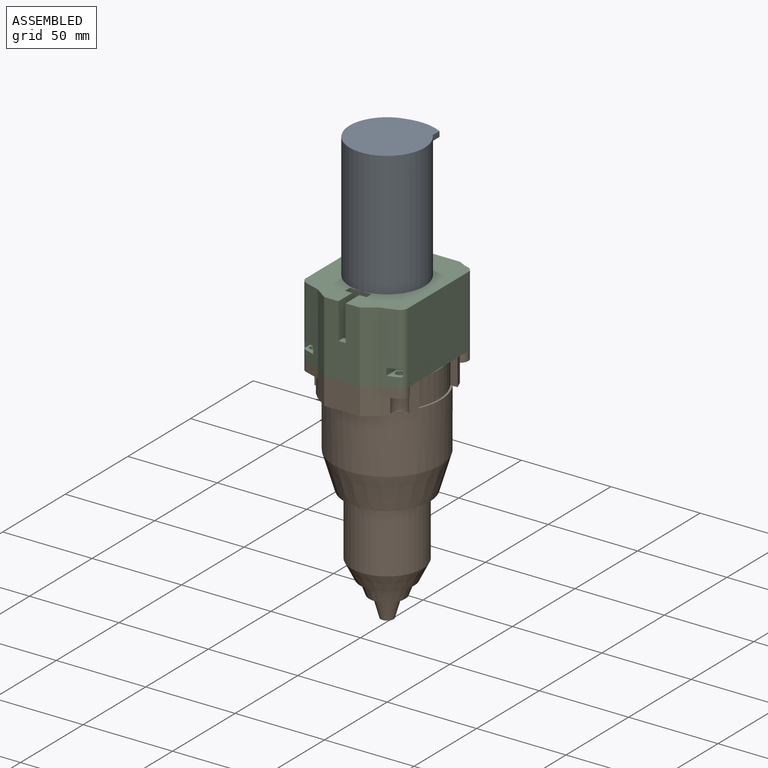
[diagram: assembled view]
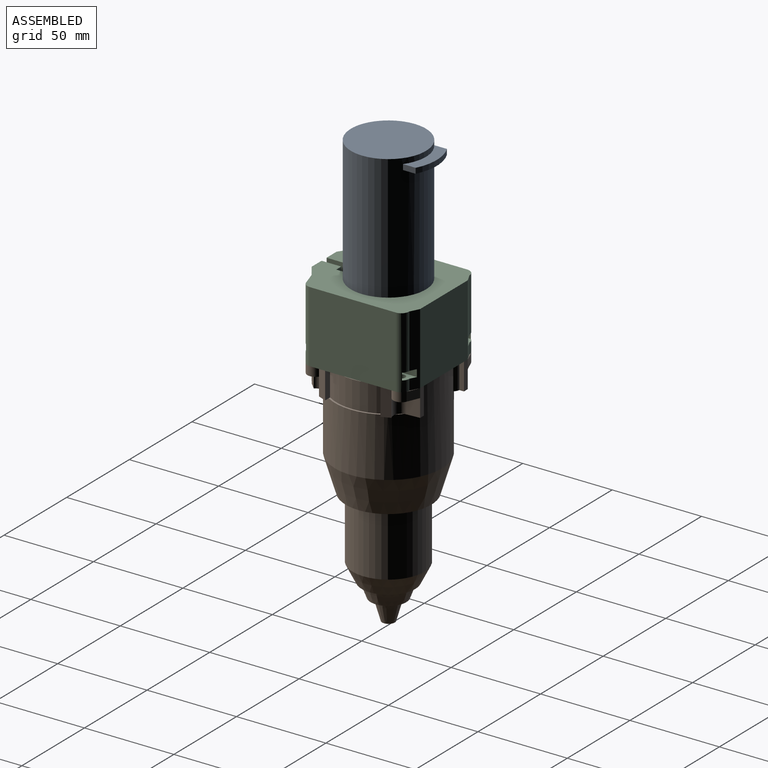
[diagram: assembled view, second angle]
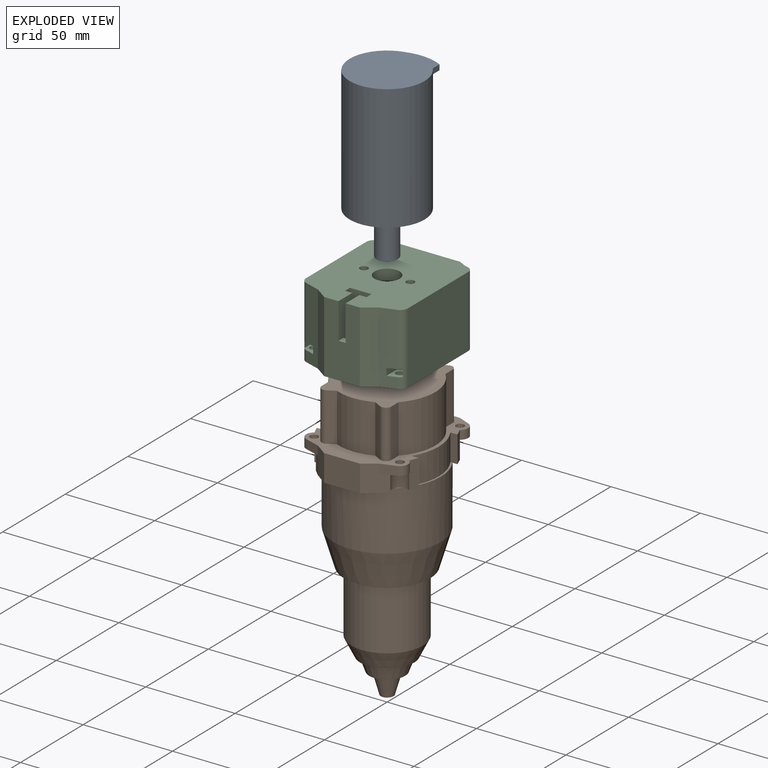
[diagram: exploded view]
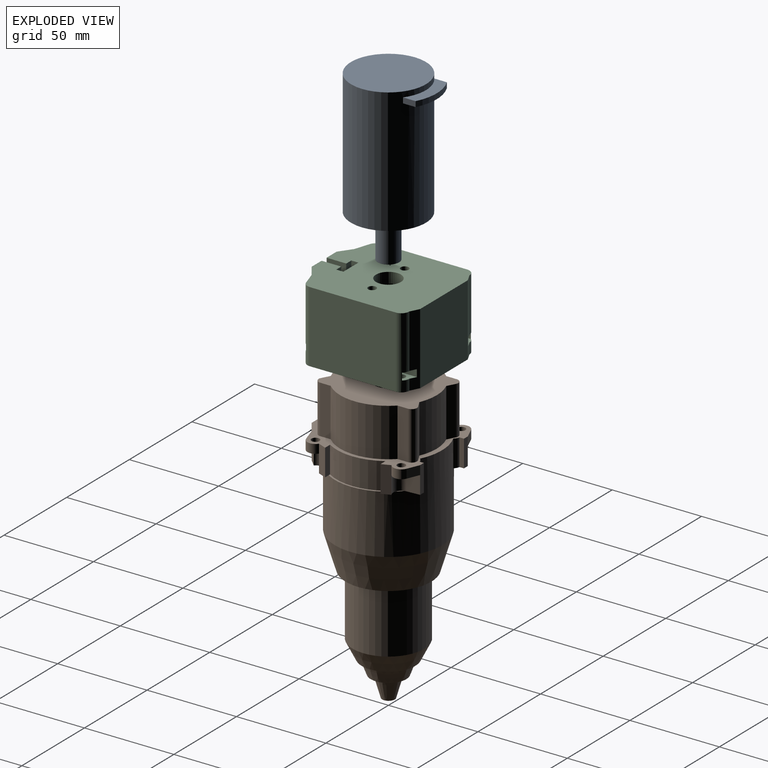
[diagram: exploded view, second angle]
ASSEMBLY  parts=3 mates=2
PART A: 24 faces, bbox 42x48x94 mm
  f0: cylinder r=2.5mm len=5mm, axis (0,0,1), area 31.4mm2, adj f3,f18
  f1: cylinder r=21mm len=70mm, axis (0,0,-1), area 9155.9mm2, adj f2,f3,f19,f20,f21,f23
  f2: plane 42x42mm, normal (0,0,1), area 1385.4mm2, adj f1
  f3: plane 42x42mm, normal (0,0,-1), area 1312.4mm2, adj f0,f1,f5,f7,f9,f11,f13,f15
  f4: cone r=0mm half-angle=59deg, axis (0,0,-1), area 8.2mm2, adj f5
  f5: cylinder r=1.5mm len=5mm, axis (0,0,-1), area 47.1mm2, adj f3,f4
  f6: cone r=0mm half-angle=59deg, axis (0,0,-1), area 8.2mm2, adj f7
  f7: cylinder r=1.5mm len=5mm, axis (0,0,-1), area 47.1mm2, adj f3,f6
  f8: cone r=0mm half-angle=59deg, axis (0,0,-1), area 8.2mm2, adj f9
  f9: cylinder r=1.5mm len=5mm, axis (0,0,-1), area 47.1mm2, adj f3,f8
  f10: cone r=0mm half-angle=59deg, axis (0,0,-1), area 8.2mm2, adj f11
  f11: cylinder r=1.5mm len=5mm, axis (0,0,-1), area 47.1mm2, adj f3,f10
  f12: cone r=0mm half-angle=59deg, axis (0,0,-1), area 14.7mm2, adj f13
  f13: cylinder r=2mm len=5mm, axis (0,0,-1), area 62.8mm2, adj f3,f12
  f14: cone r=0mm half-angle=59deg, axis (0,0,-1), area 14.7mm2, adj f15
  f15: cylinder r=2mm len=5mm, axis (0,0,-1), area 62.8mm2, adj f3,f14
  f16: cylinder r=6mm len=22mm, axis (0,0,1), area 829.4mm2, adj f17,f18
  f17: plane 12x12mm, normal (0,0,-1), area 113.1mm2, adj f16
  f18: plane 12x12mm, normal (0,0,1), area 93.5mm2, adj f0,f16
  f19: plane 25x10.13mm, normal (0,0,-1), area 157.9mm2, adj f1,f21,f22,f23
  f20: plane 25x10.13mm, normal (0,0,1), area 157.9mm2, adj f1,f21,f22,f23
  f21: plane 7.06x3mm, normal (-1,0,0), area 21.2mm2, adj f1,f19,f20,f22
  f22: cylinder r=27mm len=25mm, axis (0,0,1), area 78mm2, adj f19,f20,f21,f23
  f23: plane 7.06x3mm, normal (1,0,0), area 21.2mm2, adj f1,f19,f20,f22
PART B: 86 faces, bbox 60x67x160 mm
  f0: plane 5.89x4.76mm, normal (0,0,-1), area 14.1mm2, adj f19,f24,f25,f49
  f1: plane 8.39x6.43mm, normal (0,0,-1), area 27mm2, adj f19,f20,f21,f22,f49,f50
  f2: plane 8.39x6.43mm, normal (0,0,-1), area 27mm2, adj f17,f18,f19,f38,f46,f47
  f3: plane 5.89x4.76mm, normal (0,0,-1), area 14.1mm2, adj f19,f36,f37,f46
  f4: plane 5.89x4.76mm, normal (0,0,-1), area 14.1mm2, adj f19,f33,f34,f44
  f5: plane 41.64x13.39mm, normal (0,0,-1), area 260.9mm2, adj f19,f30,f31,f32,f40,f41,f43,f44
  f6: plane 6.75x5mm, normal (-0.39,0.92,0), area 36.7mm2, adj f22,f23,f39,f51
  f7: plane 8.39x5mm, normal (-0.31,-0.95,0), area 44.1mm2, adj f29,f30,f39,f42
  f8: plane 8.39x5mm, normal (0.31,-0.95,0), area 44.1mm2, adj f9,f32,f39,f45
  f9: cylinder r=4.5mm len=8.02mm, axis (0,0,1), area 50.4mm2, adj f8,f33,f39,f45
  f10: cylinder r=4.5mm len=7.89mm, axis (0,0,1), area 48.4mm2, adj f11,f37,f39,f48
  f11: plane 6.75x5mm, normal (0.39,0.92,0), area 36.7mm2, adj f10,f38,f39,f48
  f12: cylinder r=2.25mm len=5mm, axis (0,0,1), area 70.7mm2, adj f39,f51
  f13: cylinder r=2.25mm len=5mm, axis (0,0,1), area 70.7mm2, adj f39,f48
  f14: cylinder r=2.25mm len=5mm, axis (0,0,1), area 70.7mm2, adj f39,f45
  f15: cylinder r=2.25mm len=5mm, axis (0,0,1), area 70.7mm2, adj f39,f42
  f16: plane 5.89x4.76mm, normal (0,0,-1), area 14.1mm2, adj f19,f27,f28,f40
  f17: plane 15x2.53mm, normal (-1,0,0), area 38mm2, adj f2,f18,f38,f39
  f18: cylinder r=4mm len=15mm, axis (0,0,1), area 48.2mm2, adj f2,f17,f19,f39
  f19: cylinder r=30mm len=60mm, axis (0,0,1), area 6633.6mm2, adj f0,f1,f2,f3,f4,f5,f16,f18
  f20: cylinder r=4mm len=15mm, axis (0,0,1), area 48.2mm2, adj f1,f19,f21,f39
  f21: plane 15x2.53mm, normal (1,0,0), area 38mm2, adj f1,f20,f22,f39
  f22: plane 15x3mm, normal (0,1,0), area 45mm2, adj f1,f6,f21,f39,f50
  f23: cylinder r=4.5mm len=7.89mm, axis (0,0,1), area 48.4mm2, adj f6,f24,f39,f51
  f24: plane 15x4.76mm, normal (-0.92,0.39,0), area 77.4mm2, adj f0,f23,f25,f39,f49
  f25: plane 15x3.99mm, normal (0,-1,0), area 59.8mm2, adj f0,f24,f26,f39,f56
  f26: cylinder r=29mm len=31mm, axis (0,0,1), area 490.6mm2, adj f25,f27,f39,f56
  f27: plane 15x3.99mm, normal (0,1,0), area 59.8mm2, adj f16,f26,f28,f39,f56
  f28: plane 15x4.76mm, normal (-0.92,-0.39,0), area 77.4mm2, adj f16,f27,f29,f39,f40
  f29: cylinder r=4.5mm len=8.02mm, axis (0,0,1), area 50.4mm2, adj f7,f28,f39,f42
  f30: plane 15x7mm, normal (-0.58,-0.81,0), area 129mm2, adj f5,f7,f31,f39,f41
  f31: plane 20x15mm, normal (0,-1,0), area 300mm2, adj f5,f30,f32,f39
  f32: plane 15x7mm, normal (0.58,-0.81,0), area 129mm2, adj f5,f8,f31,f39,f43
  f33: plane 15x4.76mm, normal (0.92,-0.39,0), area 77.4mm2, adj f4,f9,f34,f39,f44
  f34: plane 15x3.99mm, normal (0,1,0), area 59.8mm2, adj f4,f33,f35,f39,f53
  f35: cylinder r=29mm len=31mm, axis (0,0,1), area 490.6mm2, adj f34,f36,f39,f53
  f36: plane 15x3.99mm, normal (0,-1,0), area 59.8mm2, adj f3,f35,f37,f39,f53
  f37: plane 15x4.76mm, normal (0.92,0.39,0), area 77.4mm2, adj f3,f10,f36,f39,f46
  f38: plane 15x3mm, normal (0,1,0), area 45mm2, adj f2,f11,f17,f39,f47
  f39: plane 67x58mm, normal (0,0,1), area 917.9mm2, adj f6,f7,f8,f9,f10,f11,f12,f13
  f40: cylinder r=4.5mm len=10mm, axis (0,0,-1), area 132.5mm2, adj f5,f16,f28,f41,f42,f54
  f41: plane 10x3.82mm, normal (-0.71,-0.71,0), area 54mm2, adj f5,f30,f40,f42
  f42: plane 11.5x11.5mm, normal (0,0,-1), area 56.4mm2, adj f7,f15,f29,f40,f41
  f43: plane 10x3.82mm, normal (0.71,-0.71,0), area 54mm2, adj f5,f32,f44,f45
  f44: cylinder r=4.5mm len=10mm, axis (0,0,-1), area 132.5mm2, adj f4,f5,f33,f43,f45,f55
  f45: plane 11.5x11.5mm, normal (0,0,-1), area 56.4mm2, adj f8,f9,f14,f43,f44
  f46: cylinder r=4.5mm len=10mm, axis (0,0,-1), area 94.1mm2, adj f2,f3,f37,f47,f48,f52
  f47: plane 10x7.31mm, normal (1,0.07,0), area 73.3mm2, adj f2,f38,f46,f48
  f48: plane 11.5x9.5mm, normal (0,0,-1), area 60mm2, adj f10,f11,f13,f46,f47
  f49: cylinder r=4.5mm len=10mm, axis (0,0,-1), area 94.1mm2, adj f0,f1,f24,f50,f51,f57
  f50: plane 10x7.31mm, normal (-1,0.07,0), area 73.3mm2, adj f1,f22,f49,f51
  f51: plane 11.5x9.5mm, normal (0,0,-1), area 60mm2, adj f6,f12,f23,f49,f50
  f52: plane 2.89x2.89mm, normal (0,0,1), area 1.5mm2, adj f19,f46
  f53: plane 31x5.49mm, normal (0,0,1), area 32.6mm2, adj f19,f34,f35,f36
  f54: plane 2.89x2.89mm, normal (0,0,1), area 1.5mm2, adj f19,f40
  f55: plane 2.89x2.89mm, normal (0,0,1), area 1.5mm2, adj f19,f44
  f56: plane 31x5.49mm, normal (0,0,1), area 32.6mm2, adj f19,f25,f26,f27
  f57: plane 2.89x2.89mm, normal (0,0,1), area 1.5mm2, adj f19,f49
  f58: cone r=30mm half-angle=16.7deg, axis (0,0,1), area 3542.3mm2, adj f19,f59
  f59: plane 48x48mm, normal (0,0,-1), area 552.9mm2, adj f58,f60
  f60: cylinder r=20mm len=40mm, axis (0,0,1), area 4398.2mm2, adj f59,f62
  f61: plane 30x30mm, normal (0,0,-1), area 175.9mm2, adj f62,f63
  f62: cone r=15mm half-angle=26.6deg, axis (0,0,1), area 1229.3mm2, adj f60,f61
  f63: cone r=13mm half-angle=20.5deg, axis (0,0,1), area 617.4mm2, adj f61,f64
  f64: plane 20.02x20.02mm, normal (0,0,-1), area 160.8mm2, adj f63,f65
  f65: cone r=7mm half-angle=16deg, axis (0,0,1), area 414.1mm2, adj f64,f66
  f66: plane 7.12x7.12mm, normal (0,0,-1), area 39.8mm2, adj f65
  f67: cylinder r=3mm len=27mm, axis (0,0,-1), area 167.3mm2, adj f39,f68,f82,f83
  f68: plane 27x4.36mm, normal (-0.48,0.88,0), area 133.9mm2, adj f39,f67,f69,f83
  f69: cylinder r=27mm len=27mm, axis (0,0,-1), area 594.8mm2, adj f39,f68,f70,f83
  f70: plane 27x4.36mm, normal (0.48,0.88,0), area 133.9mm2, adj f39,f69,f71,f83
  f71: cylinder r=3mm len=27mm, axis (0,0,-1), area 167.3mm2, adj f39,f70,f72,f83
  f72: plane 27x5.83mm, normal (-1,0,0), area 157.3mm2, adj f39,f71,f73,f83
  f73: cylinder r=27mm len=37.35mm, axis (0,0,-1), area 1113.6mm2, adj f39,f72,f74,f83
  f74: plane 27x5.83mm, normal (-1,0,0), area 157.3mm2, adj f39,f73,f75,f83
  f75: cylinder r=3mm len=27mm, axis (0,0,-1), area 167.3mm2, adj f39,f74,f76,f83
  f76: plane 27x4.36mm, normal (0.48,-0.88,0), area 133.9mm2, adj f39,f75,f77,f83
  f77: cylinder r=27mm len=27mm, axis (0,0,-1), area 594.8mm2, adj f39,f76,f78,f83
  f78: plane 27x4.36mm, normal (-0.48,-0.88,0), area 133.9mm2, adj f39,f77,f79,f83
  f79: cylinder r=3mm len=27mm, axis (0,0,-1), area 167.3mm2, adj f39,f78,f80,f83
  f80: plane 27x5.83mm, normal (1,0,0), area 157.3mm2, adj f39,f79,f81,f83
  f81: cylinder r=27mm len=37.35mm, axis (0,0,-1), area 1113.6mm2, adj f39,f80,f82,f83
  f82: plane 27x5.83mm, normal (1,0,0), area 157.3mm2, adj f39,f67,f81,f83
  f83: plane 55x54mm, normal (0,0,1), area 2241.5mm2, adj f67,f68,f69,f70,f71,f72,f73,f74
  f84: cylinder r=8mm len=16mm, axis (0,0,1), area 703.7mm2, adj f83,f85
  f85: plane 16x16mm, normal (0,0,1), area 201.1mm2, adj f84
PART C: 82 faces, bbox 57x67x40 mm
  f0: plane 20x4mm, normal (0,1,0), area 80mm2, adj f22,f77,f78,f79
  f1: plane 67x57mm, normal (0,0,1), area 3300.7mm2, adj f4,f5,f6,f7,f8,f9,f10,f11
  f2: plane 56x55mm, normal (0,0,-1), area 2302.4mm2, adj f3,f23,f24,f25,f26,f27,f28,f29
  f3: cylinder r=27.5mm len=34mm, axis (0,0,-1), area 279.9mm2, adj f2,f22,f36,f77
  f4: plane 40x5mm, normal (-0.45,0.89,0), area 208mm2, adj f1,f5,f21,f22,f39,f43,f44
  f5: cylinder r=4.5mm len=40mm, axis (0,0,-1), area 266.7mm2, adj f1,f4,f16,f22,f40,f43,f44
  f6: cylinder r=4.5mm len=40mm, axis (0,0,-1), area 215.9mm2, adj f1,f7,f16,f22,f64,f67,f68
  f7: plane 40x8.39mm, normal (-0.31,-0.95,0), area 332.2mm2, adj f1,f6,f17,f22,f65,f67,f68
  f8: plane 40x8.39mm, normal (0.31,-0.95,0), area 332.2mm2, adj f1,f9,f19,f22,f55,f59,f60
  f9: cylinder r=4.5mm len=40mm, axis (0,0,-1), area 215.9mm2, adj f1,f8,f20,f22,f56,f59,f60
  f10: cylinder r=4.5mm len=40mm, axis (0,0,-1), area 266.7mm2, adj f1,f11,f20,f22,f48,f51,f52
  f11: plane 40x5mm, normal (0.45,0.89,0), area 208mm2, adj f1,f10,f21,f22,f49,f51,f52
  f12: cylinder r=2.25mm len=6mm, axis (0,0,-1), area 84.8mm2, adj f22,f68
  f13: cylinder r=2.25mm len=6mm, axis (0,0,-1), area 84.8mm2, adj f22,f60
  f14: cylinder r=2.25mm len=6mm, axis (0,0,-1), area 84.8mm2, adj f22,f52
  f15: cylinder r=2.25mm len=6mm, axis (0,0,-1), area 84.8mm2, adj f22,f44
  f16: plane 48x40mm, normal (-1,0,0), area 1920mm2, adj f1,f5,f6,f22
  f17: plane 40x7mm, normal (-0.58,-0.81,0), area 344.1mm2, adj f1,f7,f18,f22
  f18: plane 40x20mm, normal (0,-1,0), area 720mm2, adj f1,f17,f19,f22,f77,f78,f79
  f19: plane 40x7mm, normal (0.58,-0.81,0), area 344.1mm2, adj f1,f8,f18,f22
  f20: plane 48x40mm, normal (1,0,0), area 1920mm2, adj f1,f9,f10,f22
  f21: plane 40x38mm, normal (0,1,0), area 1520mm2, adj f1,f4,f11,f22
  f22: plane 67x57mm, normal (0,0,-1), area 950.6mm2, adj f0,f3,f4,f5,f6,f7,f8,f9
  f23: cylinder r=27.5mm len=37.75mm, axis (0,0,-1), area 1414.6mm2, adj f2,f22,f24,f38
  f24: plane 34x5.63mm, normal (-1,0,0), area 191.3mm2, adj f2,f22,f23,f25
  f25: cylinder r=3.5mm len=34mm, axis (0,0,-1), area 233.2mm2, adj f2,f22,f24,f26
  f26: plane 34x5.17mm, normal (0.38,-0.93,0), area 190.1mm2, adj f2,f22,f25,f27
  f27: cylinder r=27.5mm len=34mm, axis (0,0,-1), area 696mm2, adj f2,f22,f26,f28
  f28: plane 34x5.17mm, normal (-0.38,-0.93,0), area 190.1mm2, adj f2,f22,f27,f29
  f29: cylinder r=3.5mm len=34mm, axis (0,0,-1), area 233.2mm2, adj f2,f22,f28,f30
  f30: plane 34x5.63mm, normal (1,0,0), area 191.3mm2, adj f2,f22,f29,f31
  f31: cylinder r=27.5mm len=37.75mm, axis (0,0,-1), area 1414.6mm2, adj f2,f22,f30,f32
  f32: plane 34x5.63mm, normal (1,0,0), area 191.3mm2, adj f2,f22,f31,f33
  f33: cylinder r=3.5mm len=34mm, axis (0,0,-1), area 233.2mm2, adj f2,f22,f32,f34
  f34: plane 34x5.17mm, normal (-0.38,0.93,0), area 190.1mm2, adj f2,f22,f33,f35
  f35: cylinder r=27.5mm len=34mm, axis (0,0,-1), area 279.9mm2, adj f2,f22,f34,f78
  f36: plane 34x5.17mm, normal (0.38,0.93,0), area 190.1mm2, adj f2,f3,f22,f37
  f37: cylinder r=3.5mm len=34mm, axis (0,0,-1), area 233.2mm2, adj f2,f22,f36,f38
  f38: plane 34x5.63mm, normal (-1,0,0), area 191.3mm2, adj f2,f22,f23,f37
  f39: plane 8.27x4mm, normal (-1,0,0), area 33.1mm2, adj f4,f42,f43,f44
  f40: plane 4.85x4mm, normal (1,0,0), area 19.4mm2, adj f5,f41,f43,f44
  f41: plane 4x3.5mm, normal (0.5,0.87,0), area 16.2mm2, adj f40,f42,f43,f44
  f42: plane 4x3.5mm, normal (-0.5,0.87,0), area 16.2mm2, adj f39,f41,f43,f44
  f43: plane 10.29x7mm, normal (0,0,-1), area 38.1mm2, adj f4,f5,f39,f40,f41,f42,f46
  f44: plane 10.29x7mm, normal (0,0,1), area 38.1mm2, adj f4,f5,f15,f39,f40,f41,f42
  f45: cone r=0mm half-angle=59deg, axis (0,0,-1), area 18.6mm2, adj f46
  f46: cylinder r=2.25mm len=4.5mm, axis (0,0,-1), area 28.3mm2, adj f43,f45
  f47: plane 4x3.5mm, normal (-0.5,0.87,0), area 16.2mm2, adj f48,f50,f51,f52
  f48: plane 4.85x4mm, normal (-1,0,0), area 19.4mm2, adj f10,f47,f51,f52
  f49: plane 8.27x4mm, normal (1,0,0), area 33.1mm2, adj f11,f50,f51,f52
  f50: plane 4x3.5mm, normal (0.5,0.87,0), area 16.2mm2, adj f47,f49,f51,f52
  f51: plane 10.29x7mm, normal (0,0,-1), area 38.1mm2, adj f10,f11,f47,f48,f49,f50,f54
  f52: plane 10.29x7mm, normal (0,0,1), area 38.1mm2, adj f10,f11,f14,f47,f48,f49,f50
  f53: cone r=0mm half-angle=59deg, axis (0,0,-1), area 18.6mm2, adj f54
  f54: cylinder r=2.25mm len=4.5mm, axis (0,0,-1), area 28.3mm2, adj f51,f53
  f55: plane 7.89x4mm, normal (1,0,0), area 31.5mm2, adj f8,f58,f59,f60
  f56: plane 4.85x4mm, normal (-1,0,0), area 19.4mm2, adj f9,f57,f59,f60
  f57: plane 4x3.5mm, normal (-0.5,-0.87,0), area 16.2mm2, adj f56,f58,f59,f60
  f58: plane 4x3.5mm, normal (0.5,-0.87,0), area 16.2mm2, adj f55,f57,f59,f60
  f59: plane 9.91x7mm, normal (0,0,-1), area 37.9mm2, adj f8,f9,f55,f56,f57,f58,f62
  f60: plane 9.91x7mm, normal (0,0,1), area 37.9mm2, adj f8,f9,f13,f55,f56,f57,f58
  f61: cone r=0mm half-angle=59deg, axis (0,0,-1), area 18.6mm2, adj f62
  f62: cylinder r=2.25mm len=4.5mm, axis (0,0,-1), area 28.3mm2, adj f59,f61
  f63: plane 4x3.5mm, normal (0.5,-0.87,0), area 16.2mm2, adj f64,f66,f67,f68
  f64: plane 4.85x4mm, normal (1,0,0), area 19.4mm2, adj f6,f63,f67,f68
  f65: plane 7.89x4mm, normal (-1,0,0), area 31.5mm2, adj f7,f66,f67,f68
  f66: plane 4x3.5mm, normal (-0.5,-0.87,0), area 16.2mm2, adj f63,f65,f67,f68
  f67: plane 9.91x7mm, normal (0,0,-1), area 37.9mm2, adj f6,f7,f63,f64,f65,f66,f70
  f68: plane 9.91x7mm, normal (0,0,1), area 37.9mm2, adj f6,f7,f12,f63,f64,f65,f66
  f69: cone r=0mm half-angle=59deg, axis (0,0,-1), area 18.6mm2, adj f70
  f70: cylinder r=2.25mm len=4.5mm, axis (0,0,-1), area 28.3mm2, adj f67,f69
  f71: cylinder r=7mm len=14mm, axis (0,0,-1), area 263.9mm2, adj f1,f2
  f72: plane 6x4mm, normal (0,1,0), area 24mm2, adj f1,f2,f73,f78
  f73: plane 6x4mm, normal (1,0,0), area 24mm2, adj f1,f2,f72,f74
  f74: plane 12x6mm, normal (0,-1,0), area 72mm2, adj f1,f2,f73,f75
  f75: plane 6x4mm, normal (-1,0,0), area 24mm2, adj f1,f2,f74,f76
  f76: plane 6x4mm, normal (0,1,0), area 24mm2, adj f1,f2,f75,f77
  f77: plane 40x11mm, normal (-1,0,0), area 277.5mm2, adj f0,f1,f2,f3,f18,f22,f76,f79
  f78: plane 40x11mm, normal (1,0,0), area 277.5mm2, adj f0,f1,f2,f18,f22,f35,f72,f79
  f79: plane 4x4mm, normal (0,0,1), area 16mm2, adj f0,f18,f77,f78
  f80: cylinder r=2.25mm len=6mm, axis (0,0,1), area 84.8mm2, adj f1,f2
  f81: cylinder r=2.25mm len=6mm, axis (0,0,1), area 84.8mm2, adj f1,f2
PLACE A rot(axis=(0,0,1),180deg) t=(0,0,40)mm
PLACE B at identity fixed
PLACE C at identity
MATE fastened A.f0 <-> C.f71  axis (0,0,-1) through (0,0,40)mm
MATE fastened B.f9 <-> C.f9  axis (0,0,1) through (24,-24,0)mm
